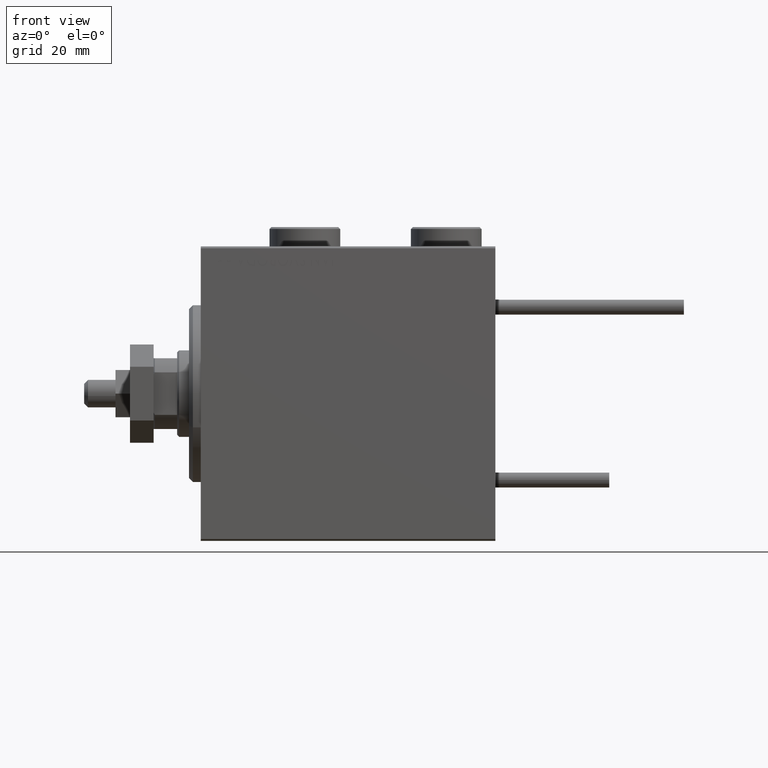
[diagram: clean part render]
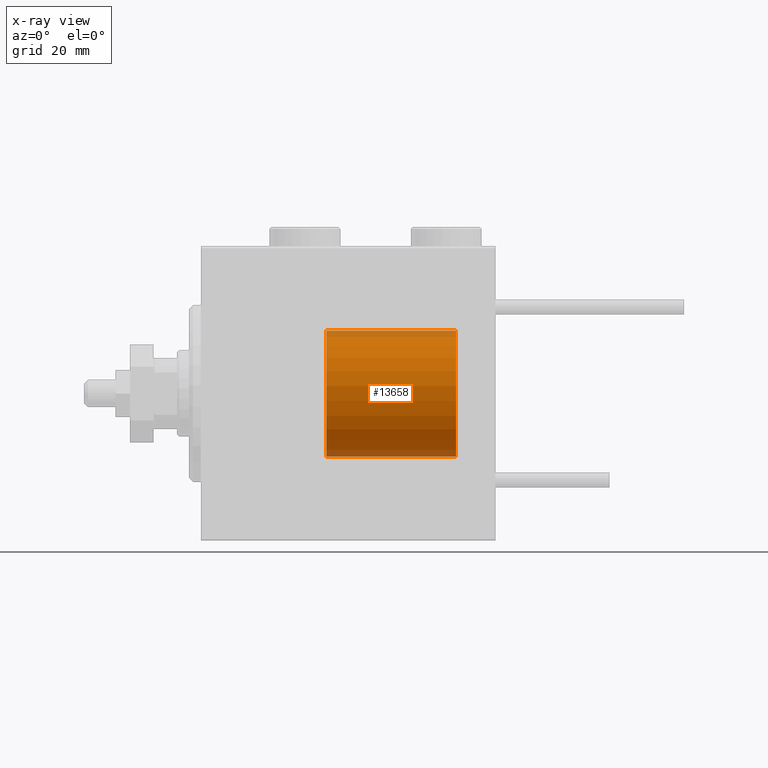
[diagram: x-ray — body ghosted, one internal face saturated and labeled with its STEP entity id]
A machine part, front view, then the same camera in x-ray: the body is ghosted and one INTERNAL B-rep face — a face not visible from any outside direction — is saturated and labeled: STEP entity #13658.
In plain terms, the highlighted cylindrical surface (partial cylindrical patch) has radius 16 mm, axis along (1, -0, -0).
Its self-contained STEP definition (entity closure, byte-faithful):
#380 = DIRECTION ( 'NONE',  ( -0.000000000000000000, -0.000000000000000000, -1.000000000000000000 ) ) ;
#1351 = AXIS2_PLACEMENT_3D ( 'NONE', #2638, #34154, #18523 ) ;
#2443 = ORIENTED_EDGE ( 'NONE', *, *, #32474, .T. ) ;
#2638 = CARTESIAN_POINT ( 'NONE',  ( 0.000000000000000000, 0.000000000000000000, 0.000000000000000000 ) ) ;
#3031 = CIRCLE ( 'NONE', #1351, 16.00000000000000000 ) ;
#3317 = DIRECTION ( 'NONE',  ( 0.000000000000000000, 0.000000000000000000, 1.000000000000000000 ) ) ;
#4064 = EDGE_CURVE ( 'NONE', #5386, #10330, #25207, .T. ) ;
#4427 = AXIS2_PLACEMENT_3D ( 'NONE', #30139, #3317, #26748 ) ;
#5171 = CARTESIAN_POINT ( 'NONE',  ( -16.00000000000000000, 0.000000000000000000, 0.000000000000000000 ) ) ;
#5386 = VERTEX_POINT ( 'NONE', #19882 ) ;
#7838 = CARTESIAN_POINT ( 'NONE',  ( 16.00000000000000000, 1.959434878635765131E-15, 33.00000000000000000 ) ) ;
#10330 = VERTEX_POINT ( 'NONE', #27558 ) ;
#10865 = VECTOR ( 'NONE', #11242, 1000.000000000000000 ) ;
#11242 = DIRECTION ( 'NONE',  ( -0.000000000000000000, -0.000000000000000000, -1.000000000000000000 ) ) ;
#11469 = ORIENTED_EDGE ( 'NONE', *, *, #4064, .F. ) ;
#13658 = ADVANCED_FACE ( 'NONE', ( #42946 ), #23122, .T. ) ;
#14862 = EDGE_CURVE ( 'NONE', #29442, #26964, #3031, .T. ) ;
#16000 = LINE ( 'NONE', #40216, #34684 ) ;
#17083 = ORIENTED_EDGE ( 'NONE', *, *, #44200, .F. ) ;
#18523 = DIRECTION ( 'NONE',  ( 1.000000000000000000, 0.000000000000000000, 0.000000000000000000 ) ) ;
#19882 = CARTESIAN_POINT ( 'NONE',  ( -16.00000000000000000, 0.000000000000000000, 33.00000000000000000 ) ) ;
#23122 = CYLINDRICAL_SURFACE ( 'NONE', #25546, 16.00000000000000000 ) ;
#24062 = DIRECTION ( 'NONE',  ( -1.000000000000000000, 0.000000000000000000, 0.000000000000000000 ) ) ;
#25207 = CIRCLE ( 'NONE', #4427, 16.00000000000000000 ) ;
#25546 = AXIS2_PLACEMENT_3D ( 'NONE', #43881, #44143, #24062 ) ;
#26748 = DIRECTION ( 'NONE',  ( 1.000000000000000000, 0.000000000000000000, 0.000000000000000000 ) ) ;
#26964 = VERTEX_POINT ( 'NONE', #33503 ) ;
#27558 = CARTESIAN_POINT ( 'NONE',  ( 16.00000000000000000, 1.959434878635765131E-15, 33.00000000000000000 ) ) ;
#29442 = VERTEX_POINT ( 'NONE', #5171 ) ;
#30139 = CARTESIAN_POINT ( 'NONE',  ( 0.000000000000000000, 0.000000000000000000, 33.00000000000000000 ) ) ;
#32474 = EDGE_CURVE ( 'NONE', #5386, #29442, #16000, .T. ) ;
#33503 = CARTESIAN_POINT ( 'NONE',  ( 16.00000000000000000, 1.959434878635765131E-15, 0.000000000000000000 ) ) ;
#34154 = DIRECTION ( 'NONE',  ( 0.000000000000000000, 0.000000000000000000, 1.000000000000000000 ) ) ;
#34684 = VECTOR ( 'NONE', #380, 1000.000000000000000 ) ;
#39432 = EDGE_LOOP ( 'NONE', ( #17083, #11469, #2443, #42255 ) ) ;
#40216 = CARTESIAN_POINT ( 'NONE',  ( -16.00000000000000000, 0.000000000000000000, 33.00000000000000000 ) ) ;
#42255 = ORIENTED_EDGE ( 'NONE', *, *, #14862, .T. ) ;
#42946 = FACE_OUTER_BOUND ( 'NONE', #39432, .T. ) ;
#43881 = CARTESIAN_POINT ( 'NONE',  ( 0.000000000000000000, 0.000000000000000000, 33.00000000000000000 ) ) ;
#44143 = DIRECTION ( 'NONE',  ( -0.000000000000000000, -0.000000000000000000, -1.000000000000000000 ) ) ;
#44200 = EDGE_CURVE ( 'NONE', #10330, #26964, #46444, .T. ) ;
#46444 = LINE ( 'NONE', #7838, #10865 ) ;